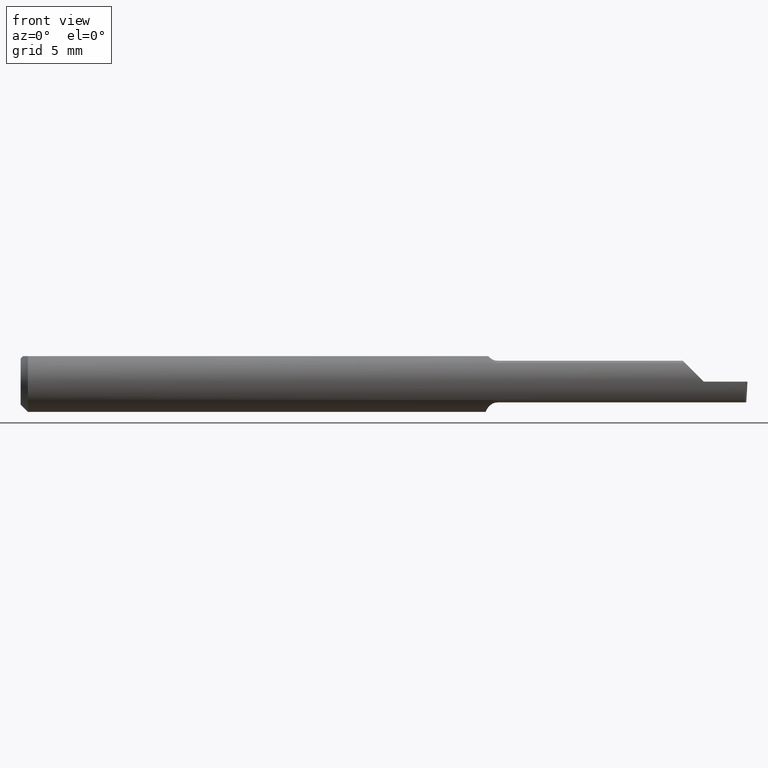
[diagram: clean part render]
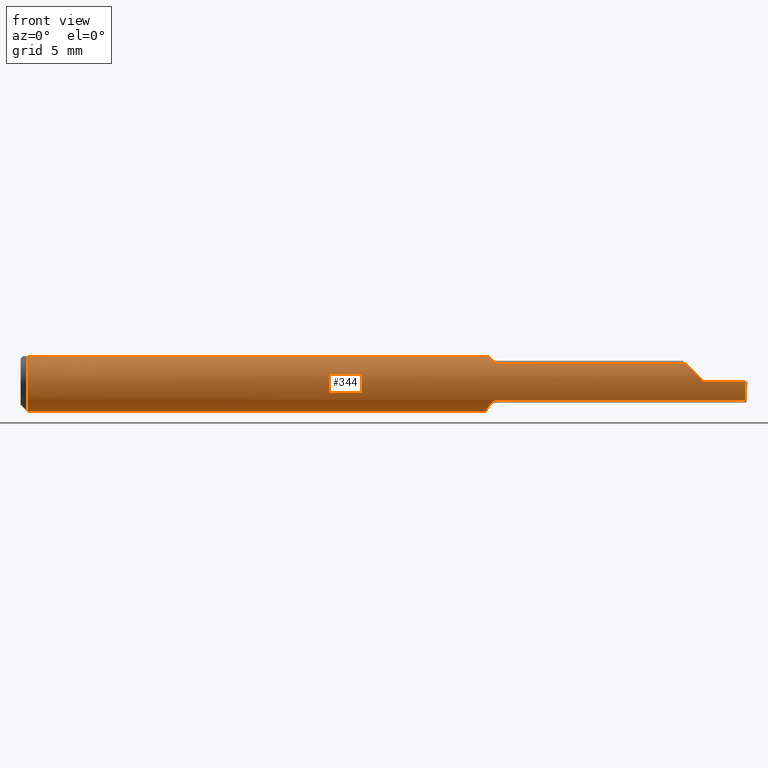
[diagram: same view with one face highlighted and labeled with its STEP entity id]
A machine part, front view. The second image highlights one B-rep face of the part: STEP entity #344.
In plain terms, the highlighted cylindrical surface (edge-blend (fillet) strip) has radius 1.5875 mm, axis along (-1, -0, -0).
Its self-contained STEP definition (entity closure, byte-faithful):
#6 = DIRECTION ( 'NONE',  ( 1.000000000000000000, 0.000000000000000000, 0.000000000000000000 ) ) ;
#12 = CARTESIAN_POINT ( 'NONE',  ( 1.371996840119888761, -0.04961864406779655651, 0.03800315988011148532 ) ) ;
#16 = EDGE_CURVE ( 'NONE', #155, #167, #554, .T. ) ;
#18 = EDGE_CURVE ( 'NONE', #33, #244, #94, .T. ) ;
#24 = CARTESIAN_POINT ( 'NONE',  ( 0.01499999999999999944, 0.000000000000000000, 0.000000000000000000 ) ) ;
#31 = CARTESIAN_POINT ( 'NONE',  ( 0.9613937318049208258, -0.02109576779706038435, -0.05901971984239203634 ) ) ;
#33 = VERTEX_POINT ( 'NONE', #638 ) ;
#37 = CARTESIAN_POINT ( 'NONE',  ( 1.383004118162293850, -0.05804917164768785831, 0.02699588183770621277 ) ) ;
#40 = VERTEX_POINT ( 'NONE', #263 ) ;
#42 = DIRECTION ( 'NONE',  ( -1.000000000000000000, -0.000000000000000000, -0.000000000000000000 ) ) ;
#49 = EDGE_CURVE ( 'NONE', #33, #185, #143, .T. ) ;
#50 = LINE ( 'NONE', #146, #268 ) ;
#58 = ORIENTED_EDGE ( 'NONE', *, *, #659, .F. ) ;
#62 = ORIENTED_EDGE ( 'NONE', *, *, #557, .T. ) ;
#73 = ORIENTED_EDGE ( 'NONE', *, *, #49, .T. ) ;
#83 = VECTOR ( 'NONE', #6, 39.37007874015748143 ) ;
#84 = VECTOR ( 'NONE', #251, 39.37007874015748143 ) ;
#89 = CARTESIAN_POINT ( 'NONE',  ( 0.000000000000000000, 0.03391164991562636150, 0.05249999999999998418 ) ) ;
#94 = LINE ( 'NONE', #642, #140 ) ;
#108 = CARTESIAN_POINT ( 'NONE',  ( 0.9652401474686986838, -0.03391164991562652803, 0.05250000000000000500 ) ) ;
#109 = EDGE_CURVE ( 'NONE', #617, #337, #692, .T. ) ;
#118 = AXIS2_PLACEMENT_3D ( 'NONE', #24, #680, #242 ) ;
#122 = CARTESIAN_POINT ( 'NONE',  ( 0.9798934400651082566, -0.04899547455819867198, 0.03883101267846624655 ) ) ;
#128 = CARTESIAN_POINT ( 'NONE',  ( 0.9850000000000000977, -0.04961864406779661202, 0.03800315988011145063 ) ) ;
#133 = B_SPLINE_CURVE_WITH_KNOTS ( 'NONE', 3,
 ( #370, #434, #31, #307, #320, #246 ),
 .UNSPECIFIED., .F., .F.,
 ( 4, 2, 4 ),
 ( 0.0009204511414458096822, 0.001283705467946031535, 0.001646959794446253497 ),
 .UNSPECIFIED. ) ;
#140 = VECTOR ( 'NONE', #266, 39.37007874015748143 ) ;
#143 =( BOUNDED_CURVE ( )  B_SPLINE_CURVE ( 3, ( #364, #708, #195, #154 ),
 .UNSPECIFIED., .F., .T. ) 
 B_SPLINE_CURVE_WITH_KNOTS ( ( 4, 4 ),
 ( 6.273290845822960371, 6.925979714601155912 ),
 .UNSPECIFIED. ) 
 CURVE ( )  GEOMETRIC_REPRESENTATION_ITEM ( )  RATIONAL_B_SPLINE_CURVE ( ( 1.000000000000000000, 0.9648137202604427642, 0.9648137202604427642, 1.000000000000000000 ) ) 
 REPRESENTATION_ITEM ( '' )  );
#145 = CARTESIAN_POINT ( 'NONE',  ( 0.9652271794864765164, -0.03459070527865117789, -0.05237439105173812698 ) ) ;
#146 = CARTESIAN_POINT ( 'NONE',  ( 2.249639673992780117E-32, -0.06250000000000000000, 1.836970198721027469E-16 ) ) ;
#149 = CARTESIAN_POINT ( 'NONE',  ( 1.494536378329570425, -0.06245432188394240552, -0.04998286624877784634 ) ) ;
#152 = CARTESIAN_POINT ( 'NONE',  ( 0.01499999999999999771, 0.03391164991562633374, 0.05250000000000000500 ) ) ;
#154 = CARTESIAN_POINT ( 'NONE',  ( 1.495842932763845390, -0.06249997390100387601, -5.711719386471155157E-05 ) ) ;
#155 = VERTEX_POINT ( 'NONE', #276 ) ;
#160 = DIRECTION ( 'NONE',  ( 1.000000000000000000, 0.000000000000000000, 0.000000000000000000 ) ) ;
#167 = VERTEX_POINT ( 'NONE', #108 ) ;
#174 = EDGE_CURVE ( 'NONE', #516, #337, #270, .T. ) ;
#184 = B_SPLINE_CURVE_WITH_KNOTS ( 'NONE', 3,
 ( #342, #620, #297, #357, #684, #122, #404, #128 ),
 .UNSPECIFIED., .F., .F.,
 ( 4, 2, 2, 4 ),
 ( 3.888235372646800376E-07, 0.0003893917635814237842, 0.0005838932336035033369, 0.0007783947036255828896 ),
 .UNSPECIFIED. ) ;
#185 = VERTEX_POINT ( 'NONE', #565 ) ;
#189 = DIRECTION ( 'NONE',  ( 0.000000000000000000, 0.000000000000000000, 1.000000000000000000 ) ) ;
#192 = DIRECTION ( 'NONE',  ( 0.000000000000000000, 0.000000000000000000, 1.000000000000000000 ) ) ;
#195 = CARTESIAN_POINT ( 'NONE',  ( 1.495480616183712197, -0.06248732152722600436, -0.01390186301200442912 ) ) ;
#197 = CARTESIAN_POINT ( 'NONE',  ( 0.9790847360483329043, -0.04877754693342478687, -0.03912413147191610985 ) ) ;
#199 = CIRCLE ( 'NONE', #118, 0.06250000000000000000 ) ;
#203 = B_SPLINE_CURVE_WITH_KNOTS ( 'NONE', 3,
 ( #694, #206, #197, #430, #547, #640, #145, #365 ),
 .UNSPECIFIED., .F., .F.,
 ( 4, 2, 2, 4 ),
 ( 1.967049449814725299E-07, 0.0002302603140701871016, 0.0004603239231953926949, 0.0009204511414458096822 ),
 .UNSPECIFIED. ) ;
#204 = VERTEX_POINT ( 'NONE', #397 ) ;
#206 = CARTESIAN_POINT ( 'NONE',  ( 0.9819304295622112155, -0.04961864406779661202, -0.03800315988011144369 ) ) ;
#229 = DIRECTION ( 'NONE',  ( -1.000000000000000000, -0.000000000000000000, -0.000000000000000000 ) ) ;
#234 = ORIENTED_EDGE ( 'NONE', *, *, #536, .T. ) ;
#238 = EDGE_CURVE ( 'NONE', #476, #508, #687, .T. ) ;
#242 = DIRECTION ( 'NONE',  ( 0.000000000000000000, 0.000000000000000000, 1.000000000000000000 ) ) ;
#244 = VERTEX_POINT ( 'NONE', #492 ) ;
#246 = CARTESIAN_POINT ( 'NONE',  ( 0.9600000000000001865, -0.002584745762711872230, -0.06244652984227500730 ) ) ;
#251 = DIRECTION ( 'NONE',  ( -1.000000000000000000, -0.000000000000000000, -0.000000000000000000 ) ) ;
#263 = CARTESIAN_POINT ( 'NONE',  ( 1.495844428430481710, -0.06249999999999996531, -4.014002452596986816E-18 ) ) ;
#266 = DIRECTION ( 'NONE',  ( -1.000000000000000000, -0.000000000000000000, -0.000000000000000000 ) ) ;
#268 = VECTOR ( 'NONE', #423, 39.37007874015748143 ) ;
#270 = LINE ( 'NONE', #570, #83 ) ;
#276 = CARTESIAN_POINT ( 'NONE',  ( 0.01499999999999999944, -0.03391164991562636150, 0.05249999999999998418 ) ) ;
#280 = ORIENTED_EDGE ( 'NONE', *, *, #425, .F. ) ;
#292 = CARTESIAN_POINT ( 'NONE',  ( 0.9850000000000000977, -0.04961864406779661202, 0.03800315988011145063 ) ) ;
#297 = CARTESIAN_POINT ( 'NONE',  ( 0.9692468641874941726, -0.04154820402037472105, 0.04686879970594857309 ) ) ;
#304 = AXIS2_PLACEMENT_3D ( 'NONE', #558, #160, #613 ) ;
#307 = CARTESIAN_POINT ( 'NONE',  ( 0.9602519097259804015, -0.01202796067517313515, -0.06151168109569449260 ) ) ;
#311 = CARTESIAN_POINT ( 'NONE',  ( 1.409999999999999920, -0.06250000000000000000, 1.102182119232617911E-17 ) ) ;
#312 = CARTESIAN_POINT ( 'NONE',  ( 1.409999999999999920, -0.06250000000000000000, 1.102182119232617911E-17 ) ) ;
#313 = ORIENTED_EDGE ( 'NONE', *, *, #500, .F. ) ;
#315 = CARTESIAN_POINT ( 'NONE',  ( 0.01499999999999999944, 0.000000000000000000, 0.000000000000000000 ) ) ;
#317 = DIRECTION ( 'NONE',  ( 1.000000000000000000, 0.000000000000000000, 0.000000000000000000 ) ) ;
#318 = EDGE_CURVE ( 'NONE', #204, #155, #199, .T. ) ;
#320 = CARTESIAN_POINT ( 'NONE',  ( 0.9600000000000001865, -0.007349427763250789350, -0.06224931325325608333 ) ) ;
#321 = LINE ( 'NONE', #149, #530 ) ;
#322 = ORIENTED_EDGE ( 'NONE', *, *, #18, .F. ) ;
#325 = ORIENTED_EDGE ( 'NONE', *, *, #109, .T. ) ;
#337 = VERTEX_POINT ( 'NONE', #12 ) ;
#342 = CARTESIAN_POINT ( 'NONE',  ( 0.9652401474686986838, -0.03391164991562652803, 0.05250000000000000500 ) ) ;
#344 = ADVANCED_FACE ( 'NONE', ( #585 ), #690, .T. ) ;
#349 = CIRCLE ( 'NONE', #586, 0.06250000000000000000 ) ;
#357 = CARTESIAN_POINT ( 'NONE',  ( 0.9739222550994101057, -0.04585862128403012800, 0.04251363034047612316 ) ) ;
#358 = VERTEX_POINT ( 'NONE', #515 ) ;
#361 = CARTESIAN_POINT ( 'NONE',  ( 0.9600000000000001865, -0.002584745762711872230, -0.06244652984227500730 ) ) ;
#364 = CARTESIAN_POINT ( 'NONE',  ( 1.495298500941084185, -0.04961864406779661202, -0.03800315988011145063 ) ) ;
#365 = CARTESIAN_POINT ( 'NONE',  ( 0.9635853400962794968, -0.02949999999999962028, -0.05509990925582384375 ) ) ;
#370 = CARTESIAN_POINT ( 'NONE',  ( 0.9635853400962794968, -0.02949999999999962028, -0.05509990925582384375 ) ) ;
#372 = EDGE_CURVE ( 'NONE', #167, #516, #184, .T. ) ;
#373 = ORIENTED_EDGE ( 'NONE', *, *, #16, .F. ) ;
#388 = AXIS2_PLACEMENT_3D ( 'NONE', #527, #229, #192 ) ;
#395 = ORIENTED_EDGE ( 'NONE', *, *, #372, .F. ) ;
#397 = CARTESIAN_POINT ( 'NONE',  ( 0.01499999999999999944, 0.000000000000000000, -0.06250000000000000000 ) ) ;
#404 = CARTESIAN_POINT ( 'NONE',  ( 0.9823935569295082493, -0.04961864406782523496, 0.03800315988007420265 ) ) ;
#423 = DIRECTION ( 'NONE',  ( -1.000000000000000000, -0.000000000000000000, -0.000000000000000000 ) ) ;
#425 = EDGE_CURVE ( 'NONE', #358, #476, #133, .T. ) ;
#430 = CARTESIAN_POINT ( 'NONE',  ( 0.9743582107592309027, -0.04628042898199343641, -0.04204840831133677126 ) ) ;
#434 = CARTESIAN_POINT ( 'NONE',  ( 0.9622891653901285425, -0.02548106644410354227, -0.05725161043827907414 ) ) ;
#463 = CARTESIAN_POINT ( 'NONE',  ( 0.9600000000000001865, 0.03391164991562636150, 0.05250000000000000500 ) ) ;
#476 = VERTEX_POINT ( 'NONE', #361 ) ;
#482 = CARTESIAN_POINT ( 'NONE',  ( 1.371996840119888761, -0.04961864406779655651, 0.03800315988011148532 ) ) ;
#486 = EDGE_CURVE ( 'NONE', #244, #358, #203, .T. ) ;
#492 = CARTESIAN_POINT ( 'NONE',  ( 0.9850000000000000977, -0.04961864406779661202, -0.03800315988011145063 ) ) ;
#500 = EDGE_CURVE ( 'NONE', #508, #535, #593, .T. ) ;
#508 = VERTEX_POINT ( 'NONE', #463 ) ;
#515 = CARTESIAN_POINT ( 'NONE',  ( 0.9635853400962794968, -0.02949999999999962028, -0.05509990925582384375 ) ) ;
#516 = VERTEX_POINT ( 'NONE', #292 ) ;
#525 = ORIENTED_EDGE ( 'NONE', *, *, #486, .F. ) ;
#527 = CARTESIAN_POINT ( 'NONE',  ( 0.000000000000000000, 0.000000000000000000, 0.000000000000000000 ) ) ;
#530 = VECTOR ( 'NONE', #594, 39.37007874015748854 ) ;
#535 = VERTEX_POINT ( 'NONE', #152 ) ;
#536 = EDGE_CURVE ( 'NONE', #40, #617, #50, .T. ) ;
#544 = CARTESIAN_POINT ( 'NONE',  ( 1.396135153618661251, -0.06250000000000001388, 0.01386484638133879746 ) ) ;
#547 = CARTESIAN_POINT ( 'NONE',  ( 0.9724551391321256677, -0.04467521257567291099, -0.04378099277185595189 ) ) ;
#551 = ORIENTED_EDGE ( 'NONE', *, *, #174, .F. ) ;
#554 = LINE ( 'NONE', #693, #589 ) ;
#557 = EDGE_CURVE ( 'NONE', #185, #40, #321, .T. ) ;
#558 = CARTESIAN_POINT ( 'NONE',  ( 0.9600000000000001865, 0.000000000000000000, 0.000000000000000000 ) ) ;
#565 = CARTESIAN_POINT ( 'NONE',  ( 1.495842932763845390, -0.06249997390100387601, -5.711719386471155157E-05 ) ) ;
#570 = CARTESIAN_POINT ( 'NONE',  ( 1.211500000000000243, -0.04961864406779661202, 0.03800315988011145063 ) ) ;
#575 = ORIENTED_EDGE ( 'NONE', *, *, #318, .F. ) ;
#584 = ORIENTED_EDGE ( 'NONE', *, *, #238, .F. ) ;
#585 = FACE_OUTER_BOUND ( 'NONE', #666, .T. ) ;
#586 = AXIS2_PLACEMENT_3D ( 'NONE', #315, #42, #189 ) ;
#589 = VECTOR ( 'NONE', #317, 39.37007874015748143 ) ;
#593 = LINE ( 'NONE', #89, #84 ) ;
#594 = DIRECTION ( 'NONE',  ( 0.02616100201822768243, -0.0009135623211514308940, 0.9996573249755575929 ) ) ;
#613 = DIRECTION ( 'NONE',  ( 0.000000000000000000, 0.000000000000000000, -1.000000000000000000 ) ) ;
#617 = VERTEX_POINT ( 'NONE', #311 ) ;
#620 = CARTESIAN_POINT ( 'NONE',  ( 0.9670045765340888888, -0.03797736612365411324, 0.04987380676756332509 ) ) ;
#638 = CARTESIAN_POINT ( 'NONE',  ( 1.495298500941084185, -0.04961864406779661202, -0.03800315988011145063 ) ) ;
#640 = CARTESIAN_POINT ( 'NONE',  ( 0.9674761956735890012, -0.03914831413394383175, -0.04898223440752283442 ) ) ;
#642 = CARTESIAN_POINT ( 'NONE',  ( 1.211500000000000243, -0.04961864406779661202, -0.03800315988011145063 ) ) ;
#659 = EDGE_CURVE ( 'NONE', #535, #204, #349, .T. ) ;
#666 = EDGE_LOOP ( 'NONE', ( #73, #62, #234, #325, #551, #395, #373, #575, #58, #313, #584, #280, #525, #322 ) ) ;
#680 = DIRECTION ( 'NONE',  ( -1.000000000000000000, -0.000000000000000000, -0.000000000000000000 ) ) ;
#684 = CARTESIAN_POINT ( 'NONE',  ( 0.9757130697016348497, -0.04711875003426047731, 0.04108804531767334955 ) ) ;
#687 = CIRCLE ( 'NONE', #304, 0.06250000000000000000 ) ;
#690 = CYLINDRICAL_SURFACE ( 'NONE', #388, 0.06250000000000000000 ) ;
#692 =( BOUNDED_CURVE ( )  B_SPLINE_CURVE ( 3, ( #312, #544, #37, #482 ),
 .UNSPECIFIED., .F., .T. ) 
 B_SPLINE_CURVE_WITH_KNOTS ( ( 4, 4 ),
 ( 4.712388980384689674, 5.365991724391927953 ),
 .UNSPECIFIED. ) 
 CURVE ( )  GEOMETRIC_REPRESENTATION_ITEM ( )  RATIONAL_B_SPLINE_CURVE ( ( 1.000000000000000000, 0.9647159968557095233, 0.9647159968557095233, 1.000000000000000000 ) ) 
 REPRESENTATION_ITEM ( '' )  );
#693 = CARTESIAN_POINT ( 'NONE',  ( 0.000000000000000000, -0.03391164991562636150, 0.05249999999999998418 ) ) ;
#694 = CARTESIAN_POINT ( 'NONE',  ( 0.9850000000000000977, -0.04961864406779661202, -0.03800315988011145063 ) ) ;
#708 = CARTESIAN_POINT ( 'NONE',  ( 1.495292520522919943, -0.05803695300436750165, -0.02701183505096050458 ) ) ;